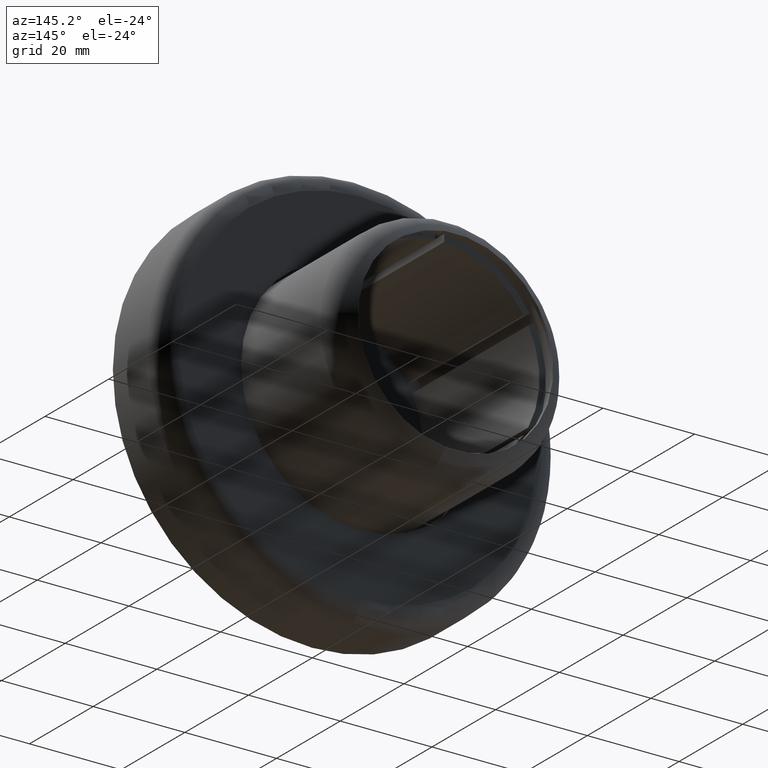
[diagram: clean part render]
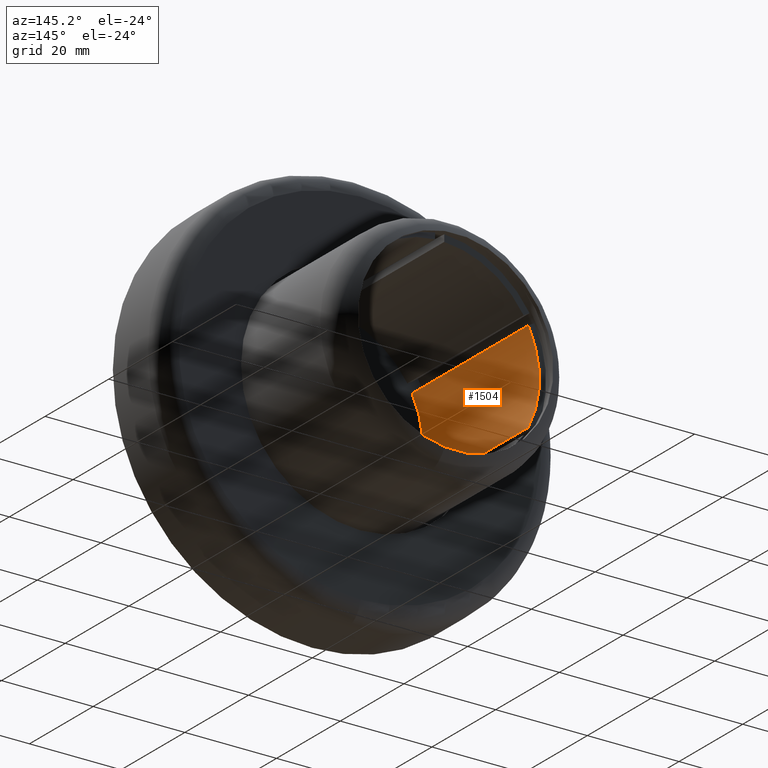
[diagram: same view with one face highlighted and labeled with its STEP entity id]
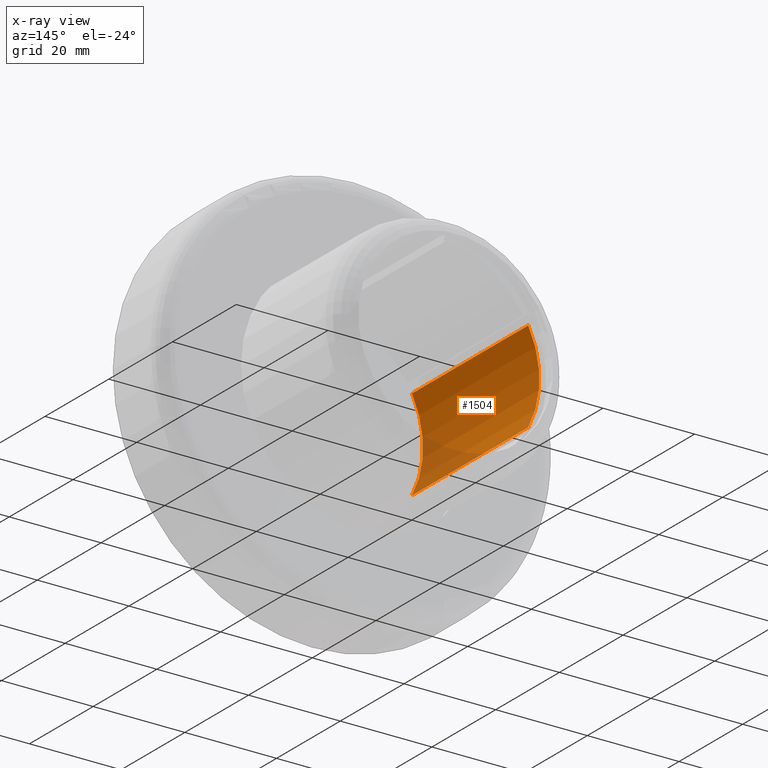
[diagram: x-ray of the same camera — body ghosted, the highlighted face saturated]
A machine part, auxiliary view. The second image highlights one B-rep face of the part: STEP entity #1504.
The next image is the same camera in x-ray: the body ghosted, the highlighted face saturated — about 13% of this face is hidden behind the body in this view.
In plain terms, the highlighted cylindrical surface (partial cylindrical patch) has radius 21.75 mm, axis along (0, -1, 0).
Its self-contained STEP definition (entity closure, byte-faithful):
#154 = VERTEX_POINT ( 'NONE', #167 ) ;
#167 = CARTESIAN_POINT ( 'NONE',  ( -19.31613337006324800, 3.500000000000000000, -9.997474262528919900 ) ) ;
#193 = VERTEX_POINT ( 'NONE', #2146 ) ;
#252 = ORIENTED_EDGE ( 'NONE', *, *, #1138, .T. ) ;
#259 = CARTESIAN_POINT ( 'NONE',  ( -19.31613337006325900, 40.00000000000000700, -9.997474262528918100 ) ) ;
#275 = CYLINDRICAL_SURFACE ( 'NONE', #1628, 21.74999999999999300 ) ;
#401 = LINE ( 'NONE', #1177, #2436 ) ;
#446 = VECTOR ( 'NONE', #619, 1000.000000000000000 ) ;
#522 = CIRCLE ( 'NONE', #1524, 21.75000000000000000 ) ;
#619 = DIRECTION ( 'NONE',  ( -3.802133645976562900E-016, 1.000000000000000000, 0.0000000000000000000 ) ) ;
#713 = CARTESIAN_POINT ( 'NONE',  ( 0.0000000000000000000, 40.00000000000000700, 0.0000000000000000000 ) ) ;
#888 = DIRECTION ( 'NONE',  ( 3.802133645976562900E-016, -1.000000000000000000, -0.0000000000000000000 ) ) ;
#1053 = EDGE_CURVE ( 'NONE', #2361, #193, #1835, .T. ) ;
#1069 = EDGE_LOOP ( 'NONE', ( #2122, #2525, #1724, #252 ) ) ;
#1138 = EDGE_CURVE ( 'NONE', #2361, #154, #1794, .T. ) ;
#1147 = FACE_OUTER_BOUND ( 'NONE', #1069, .T. ) ;
#1175 = EDGE_CURVE ( 'NONE', #1368, #154, #401, .T. ) ;
#1177 = CARTESIAN_POINT ( 'NONE',  ( -19.31613337006324800, 3.499999999999993300, -9.997474262528919900 ) ) ;
#1368 = VERTEX_POINT ( 'NONE', #259 ) ;
#1486 = CARTESIAN_POINT ( 'NONE',  ( 1.387778780781445700E-014, 3.500000000000000000, 0.0000000000000000000 ) ) ;
#1504 = ADVANCED_FACE ( 'NONE', ( #1147 ), #275, .F. ) ;
#1524 = AXIS2_PLACEMENT_3D ( 'NONE', #713, #2068, #2594 ) ;
#1526 = DIRECTION ( 'NONE',  ( 0.0000000000000000000, 0.0000000000000000000, 1.000000000000000000 ) ) ;
#1558 = CARTESIAN_POINT ( 'NONE',  ( 1.387778780781445700E-014, 3.500000000000000000, 0.0000000000000000000 ) ) ;
#1628 = AXIS2_PLACEMENT_3D ( 'NONE', #1486, #888, #1957 ) ;
#1724 = ORIENTED_EDGE ( 'NONE', *, *, #1053, .F. ) ;
#1794 = CIRCLE ( 'NONE', #2024, 21.74999999999999300 ) ;
#1824 = CARTESIAN_POINT ( 'NONE',  ( -19.31613337006234200, 3.500000000000000000, 9.997474262530676700 ) ) ;
#1835 = LINE ( 'NONE', #2754, #446 ) ;
#1957 = DIRECTION ( 'NONE',  ( 1.000000000000000000, 3.788476556730959200E-016, 0.0000000000000000000 ) ) ;
#2024 = AXIS2_PLACEMENT_3D ( 'NONE', #1558, #2299, #1526 ) ;
#2068 = DIRECTION ( 'NONE',  ( 3.802133645976562900E-016, -1.000000000000000000, -0.0000000000000000000 ) ) ;
#2122 = ORIENTED_EDGE ( 'NONE', *, *, #1175, .F. ) ;
#2146 = CARTESIAN_POINT ( 'NONE',  ( -19.31613337006235300, 40.00000000000000700, 9.997474262530676700 ) ) ;
#2299 = DIRECTION ( 'NONE',  ( -0.0000000000000000000, -1.000000000000000000, -0.0000000000000000000 ) ) ;
#2361 = VERTEX_POINT ( 'NONE', #1824 ) ;
#2436 = VECTOR ( 'NONE', #3064, 1000.000000000000000 ) ;
#2525 = ORIENTED_EDGE ( 'NONE', *, *, #2838, .F. ) ;
#2594 = DIRECTION ( 'NONE',  ( 1.000000000000000000, 3.190296047773438100E-016, 0.0000000000000000000 ) ) ;
#2754 = CARTESIAN_POINT ( 'NONE',  ( -19.31613337006233900, 3.499999999999993300, 9.997474262530674900 ) ) ;
#2838 = EDGE_CURVE ( 'NONE', #193, #1368, #522, .T. ) ;
#3064 = DIRECTION ( 'NONE',  ( 3.802133645976562900E-016, -1.000000000000000000, -0.0000000000000000000 ) ) ;